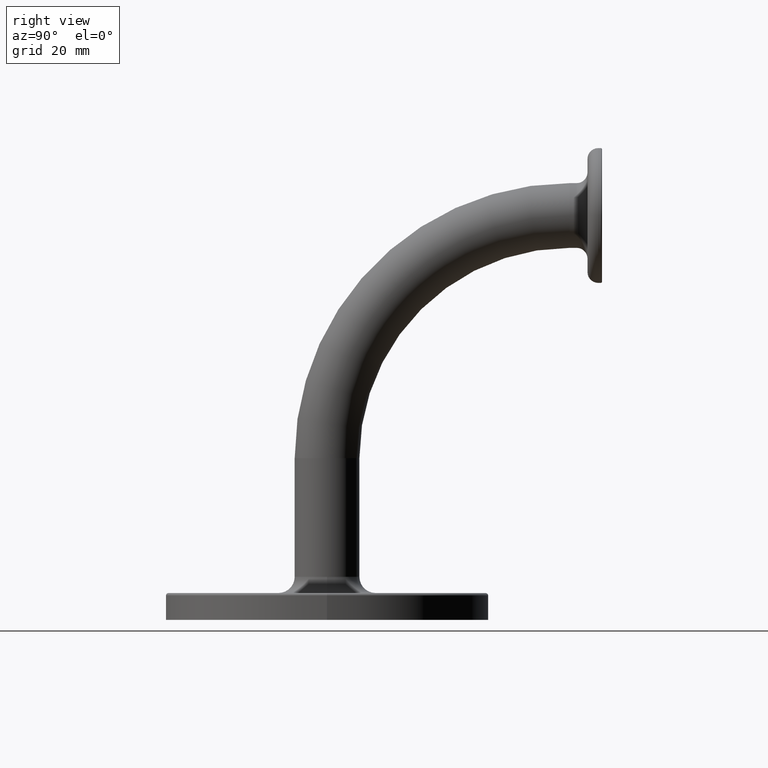
[diagram: clean part render]
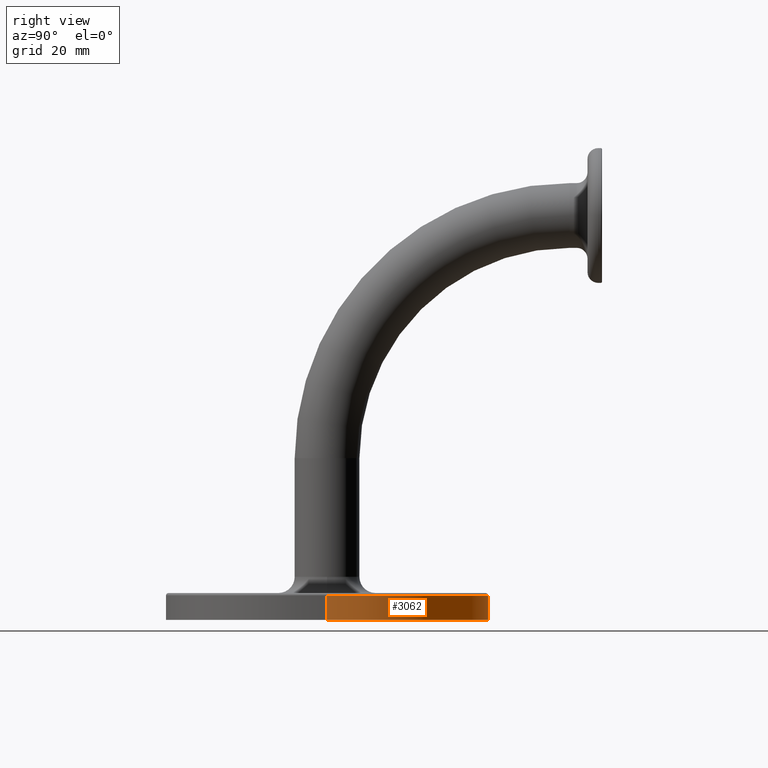
[diagram: same view with one face highlighted and labeled with its STEP entity id]
A machine part, right view. The second image highlights one B-rep face of the part: STEP entity #3062.
In plain terms, the highlighted cylindrical surface (partial cylindrical patch) has radius 30 mm, axis along (-0, -0, -1).
Its self-contained STEP definition (entity closure, byte-faithful):
#699 = LINE ( 'NONE', #6690, #2264 ) ;
#1268 = DIRECTION ( 'NONE',  ( -1.000000000000000000, 0.000000000000000000, 0.000000000000000000 ) ) ;
#1730 = CARTESIAN_POINT ( 'NONE',  ( -30.00000000000000000, 0.000000000000000000, 5.000000000000000000 ) ) ;
#2264 = VECTOR ( 'NONE', #11700, 1000.000000000000000 ) ;
#2631 = EDGE_CURVE ( 'NONE', #8659, #2915, #10874, .T. ) ;
#2905 = ORIENTED_EDGE ( 'NONE', *, *, #5039, .T. ) ;
#2915 = VERTEX_POINT ( 'NONE', #12975 ) ;
#3062 = ADVANCED_FACE ( 'NONE', ( #11839 ), #14375, .T. ) ;
#3297 = ORIENTED_EDGE ( 'NONE', *, *, #2631, .T. ) ;
#3442 = VERTEX_POINT ( 'NONE', #12318 ) ;
#3695 = EDGE_CURVE ( 'NONE', #8659, #5222, #3893, .T. ) ;
#3893 = LINE ( 'NONE', #1730, #12988 ) ;
#5039 = EDGE_CURVE ( 'NONE', #3442, #5222, #5407, .T. ) ;
#5222 = VERTEX_POINT ( 'NONE', #10066 ) ;
#5407 = CIRCLE ( 'NONE', #10587, 30.00000000000000000 ) ;
#6585 = CARTESIAN_POINT ( 'NONE',  ( 0.000000000000000000, 0.000000000000000000, 0.000000000000000000 ) ) ;
#6690 = CARTESIAN_POINT ( 'NONE',  ( 30.00000000000000000, 3.673940397442059178E-15, 5.000000000000000000 ) ) ;
#7097 = DIRECTION ( 'NONE',  ( 1.000000000000000000, 0.000000000000000000, 0.000000000000000000 ) ) ;
#8659 = VERTEX_POINT ( 'NONE', #13357 ) ;
#8906 = EDGE_CURVE ( 'NONE', #2915, #3442, #699, .T. ) ;
#9016 = AXIS2_PLACEMENT_3D ( 'NONE', #13312, #12067, #7097 ) ;
#10066 = CARTESIAN_POINT ( 'NONE',  ( -30.00000000000000000, 0.000000000000000000, 0.000000000000000000 ) ) ;
#10192 = DIRECTION ( 'NONE',  ( 1.000000000000000000, 0.000000000000000000, 0.000000000000000000 ) ) ;
#10587 = AXIS2_PLACEMENT_3D ( 'NONE', #6585, #11655, #10192 ) ;
#10874 = CIRCLE ( 'NONE', #9016, 30.00000000000000000 ) ;
#10941 = CARTESIAN_POINT ( 'NONE',  ( 0.000000000000000000, 0.000000000000000000, 5.000000000000000000 ) ) ;
#10943 = EDGE_LOOP ( 'NONE', ( #3297, #14552, #2905, #13502 ) ) ;
#11498 = DIRECTION ( 'NONE',  ( -0.000000000000000000, -0.000000000000000000, -1.000000000000000000 ) ) ;
#11655 = DIRECTION ( 'NONE',  ( 0.000000000000000000, 0.000000000000000000, 1.000000000000000000 ) ) ;
#11700 = DIRECTION ( 'NONE',  ( -0.000000000000000000, -0.000000000000000000, -1.000000000000000000 ) ) ;
#11839 = FACE_OUTER_BOUND ( 'NONE', #10943, .T. ) ;
#12067 = DIRECTION ( 'NONE',  ( -0.000000000000000000, -0.000000000000000000, -1.000000000000000000 ) ) ;
#12318 = CARTESIAN_POINT ( 'NONE',  ( 30.00000000000000000, 3.673940397442059178E-15, 0.000000000000000000 ) ) ;
#12975 = CARTESIAN_POINT ( 'NONE',  ( 30.00000000000000000, 3.673940397442059178E-15, 4.500000000000000888 ) ) ;
#12988 = VECTOR ( 'NONE', #11498, 1000.000000000000000 ) ;
#13312 = CARTESIAN_POINT ( 'NONE',  ( 0.000000000000000000, 0.000000000000000000, 4.500000000000000888 ) ) ;
#13357 = CARTESIAN_POINT ( 'NONE',  ( -30.00000000000000000, 0.000000000000000000, 4.500000000000000888 ) ) ;
#13441 = DIRECTION ( 'NONE',  ( -0.000000000000000000, -0.000000000000000000, -1.000000000000000000 ) ) ;
#13480 = AXIS2_PLACEMENT_3D ( 'NONE', #10941, #13441, #1268 ) ;
#13502 = ORIENTED_EDGE ( 'NONE', *, *, #3695, .F. ) ;
#14375 = CYLINDRICAL_SURFACE ( 'NONE', #13480, 30.00000000000000000 ) ;
#14552 = ORIENTED_EDGE ( 'NONE', *, *, #8906, .T. ) ;